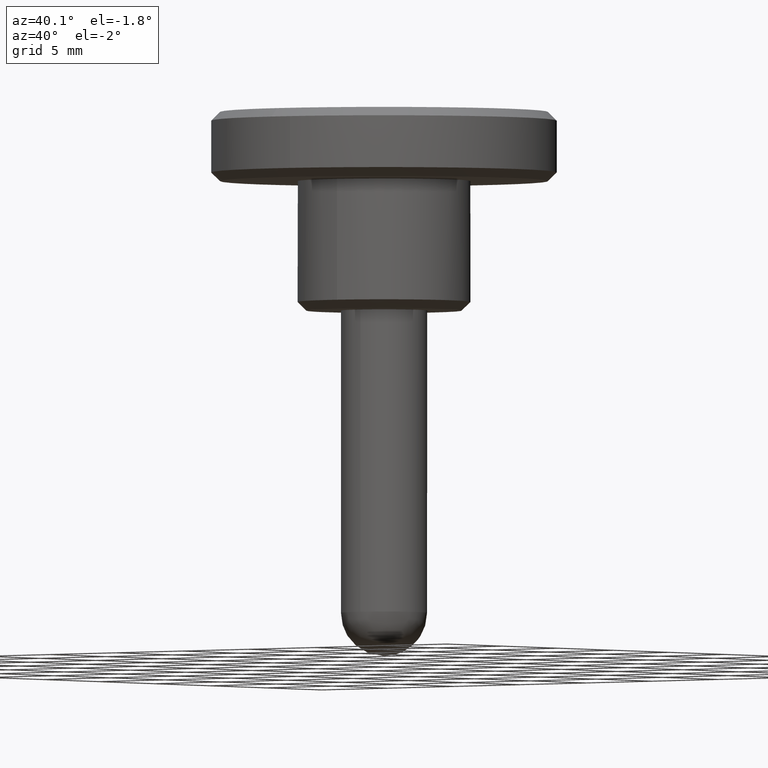
[diagram: clean part render]
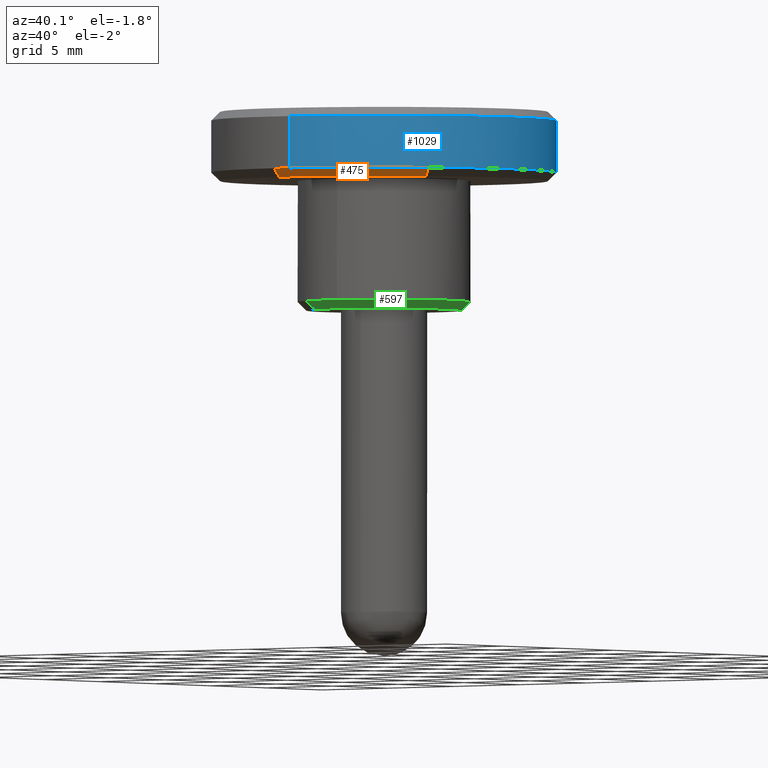
[diagram: same view with three faces highlighted in distinct colors, each labeled with its STEP entity id]
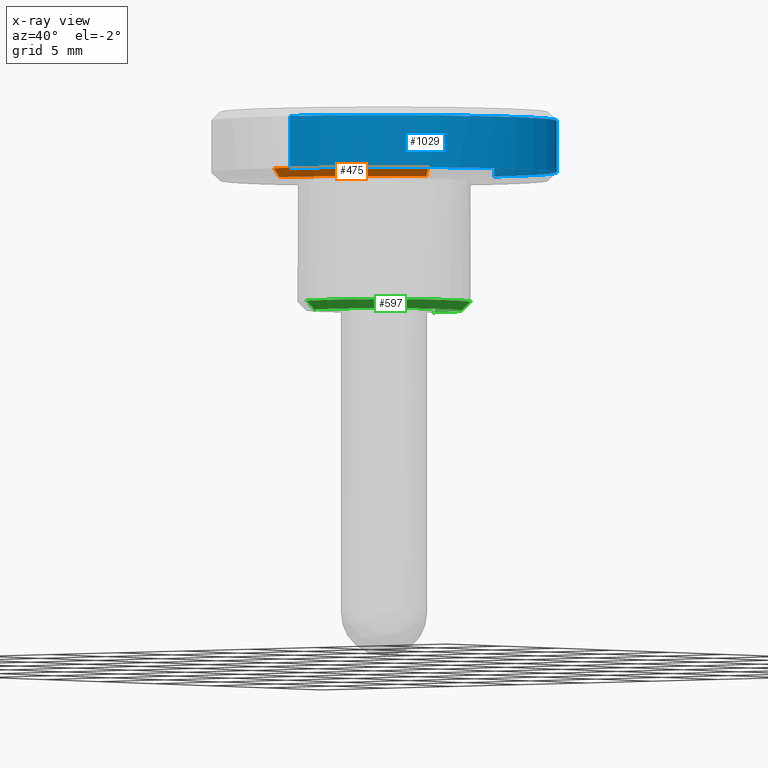
[diagram: x-ray of the same camera — body ghosted, the three highlighted faces saturated]
A machine part, auxiliary view with three faces highlighted in distinct colors.
The next image is the same camera in x-ray (body ghosted, the three faces saturated) — at least one of them is partly hidden behind the body in this view.
Their STEP definitions:

[orange] entity #475 — the highlighted face is a freeform B-spline surface patch.
#288=CARTESIAN_POINT('',(7.779228070748030,-5.452853438640519,7.500000000000470));
#289=VERTEX_POINT('',#288);
#320=CARTESIAN_POINT('',(0.082902087267421,-9.499638269113834,7.500000000004551));
#321=VERTEX_POINT('',#320);
#337=CARTESIAN_POINT('',(0.087265354983865,-9.999619230641743,8.000000000000121));
#338=VERTEX_POINT('',#337);
#339=CARTESIAN_POINT('',(0.082902087267421,-9.499638269113834,7.500000000004551));
#340=CARTESIAN_POINT('',(0.087265354983865,-9.999619230641743,8.000000000000121));
#341=QUASI_UNIFORM_CURVE('',1,(#339,#340),.UNSPECIFIED.,.F.,.U.);
#342=EDGE_CURVE('',#321,#338,#341,.T.);
#393=CARTESIAN_POINT('',(8.188661127107462,-5.739845724878052,8.000000000000174));
#394=VERTEX_POINT('',#393);
#408=CARTESIAN_POINT('',(7.779228070748030,-5.452853438640519,7.500000000000470));
#409=CARTESIAN_POINT('',(8.188661127107462,-5.739845724878052,8.000000000000174));
#410=QUASI_UNIFORM_CURVE('',1,(#408,#409),.UNSPECIFIED.,.F.,.U.);
#411=EDGE_CURVE('',#289,#394,#410,.T.);
#416=CARTESIAN_POINT('',(0.082793005540823,-9.487138745071432,7.487500000000109));
#417=CARTESIAN_POINT('',(4.966000022812007,-9.444523643036803,7.487500000000109));
#418=CARTESIAN_POINT('',(7.768992244344123,-5.445678631476790,7.487500000000110));
#419=CARTESIAN_POINT('',(0.087377163719812,-10.012431242781030,8.012812500000122));
#420=CARTESIAN_POINT('',(5.240962013534871,-9.967456589148242,8.012812500000123));
#421=CARTESIAN_POINT('',(8.199152849177494,-5.747199902211691,8.012812500000123));
#429=(BOUNDED_SURFACE()B_SPLINE_SURFACE(2,1,((#416,#419),(#417,#420),(#418,#421)),.UNSPECIFIED.,.F.,.F.,.U.)B_SPLINE_SURFACE_WITH_KNOTS((3,3),(2,2),(0.0,9.886015678606007),(0.0,1.0),.UNSPECIFIED.)GEOMETRIC_REPRESENTATION_ITEM()RATIONAL_B_SPLINE_SURFACE(((1.0,1.0),(0.824264068711928,0.824264068711928),(0.859411254969543,0.859411254969543)))REPRESENTATION_ITEM('')SURFACE());
#430=CARTESIAN_POINT('',(7.779228070748030,-5.452853438640519,7.500000000000470));
#431=CARTESIAN_POINT('',(4.972542842353667,-9.456967020661594,7.500000000000111));
#432=CARTESIAN_POINT('',(0.082902087267421,-9.499638269113834,7.500000000004551));
#440=(BOUNDED_CURVE()B_SPLINE_CURVE(2,(#430,#431,#432),.UNSPECIFIED.,.F.,.U.)B_SPLINE_CURVE_WITH_KNOTS((3,3),(0.098673726203164,0.248460105663795),.UNSPECIFIED.)CURVE()GEOMETRIC_REPRESENTATION_ITEM()RATIONAL_B_SPLINE_CURVE((0.860049271925728,0.823090203821257,0.996414028097588))REPRESENTATION_ITEM(''));
#441=EDGE_CURVE('',#289,#321,#440,.T.);
#442=ORIENTED_EDGE('',*,*,#441,.F.);
#443=ORIENTED_EDGE('',*,*,#411,.T.);
#444=CARTESIAN_POINT('',(1.241273210275925,-9.922662990216093,8.000000000000119));
#445=VERTEX_POINT('',#444);
#446=CARTESIAN_POINT('',(1.241273210275926,-9.922662990216093,8.000000000000119));
#447=CARTESIAN_POINT('',(5.642649146595481,-9.372073894983299,8.000000000000119));
#448=CARTESIAN_POINT('',(8.188661127107462,-5.739845724878052,8.000000000000174));
#456=(BOUNDED_CURVE()B_SPLINE_CURVE(2,(#446,#447,#448),.UNSPECIFIED.,.F.,.U.)B_SPLINE_CURVE_WITH_KNOTS((3,3),(0.271473813218811,0.401326273797078),.UNSPECIFIED.)CURVE()GEOMETRIC_REPRESENTATION_ITEM()RATIONAL_B_SPLINE_CURVE((0.954005654904512,0.828008802349301,0.860049271925847))REPRESENTATION_ITEM(''));
#457=EDGE_CURVE('',#445,#394,#456,.T.);
#458=ORIENTED_EDGE('',*,*,#457,.F.);
#459=CARTESIAN_POINT('',(0.087265354983865,-9.999619230641743,8.000000000000121));
#460=CARTESIAN_POINT('',(0.666498146396255,-9.994564342650969,8.000000000000119));
#461=CARTESIAN_POINT('',(1.241273210275926,-9.922662990216093,8.000000000000119));
#469=(BOUNDED_CURVE()B_SPLINE_CURVE(2,(#459,#460,#461),.UNSPECIFIED.,.F.,.U.)B_SPLINE_CURVE_WITH_KNOTS((3,3),(0.251539894334992,0.271473813218811),.UNSPECIFIED.)CURVE()GEOMETRIC_REPRESENTATION_ITEM()RATIONAL_B_SPLINE_CURVE((0.996414028100395,0.973347691453278,0.954005654904512))REPRESENTATION_ITEM(''));
#470=EDGE_CURVE('',#338,#445,#469,.T.);
#471=ORIENTED_EDGE('',*,*,#470,.F.);
#472=ORIENTED_EDGE('',*,*,#342,.F.);
#473=EDGE_LOOP('',(#442,#443,#458,#471,#472));
#474=FACE_OUTER_BOUND('',#473,.T.);
#475=ADVANCED_FACE('',(#474),#429,.T.);

[blue] entity #1029 — the highlighted face is a freeform B-spline surface patch.
#150=CARTESIAN_POINT('',(1.241271964109417,-9.922663146103972,11.000000000000171));
#151=VERTEX_POINT('',#150);
#167=CARTESIAN_POINT('',(10.0,0.0,11.000000000000121));
#168=VERTEX_POINT('',#167);
#169=CARTESIAN_POINT('',(10.0,0.0,11.000000000000121));
#170=CARTESIAN_POINT('',(10.0,-8.826993224421114,11.000000000000119));
#171=CARTESIAN_POINT('',(1.241271964109417,-9.922663146103972,11.000000000000178));
#179=(BOUNDED_CURVE()B_SPLINE_CURVE(2,(#169,#170,#171),.UNSPECIFIED.,.F.,.U.)B_SPLINE_CURVE_WITH_KNOTS((3,3),(0.500000000000000,0.728526207961082),.UNSPECIFIED.)CURVE()GEOMETRIC_REPRESENTATION_ITEM()RATIONAL_B_SPLINE_CURVE((1.0,0.732264893468185,0.954005696006546))REPRESENTATION_ITEM(''));
#180=EDGE_CURVE('',#168,#151,#179,.T.);
#182=CARTESIAN_POINT('',(-0.087255723740062,9.999619314683024,11.000000000000080));
#183=VERTEX_POINT('',#182);
#184=CARTESIAN_POINT('',(-0.087255723740062,9.999619314683024,11.000000000000075));
#185=CARTESIAN_POINT('',(-0.043628692310169,9.999999999999998,11.000000000000115));
#186=CARTESIAN_POINT('',(0.0,10.0,11.000000000000121));
#187=CARTESIAN_POINT('',(10.000000000000002,10.000000000000002,11.000000000000119));
#188=CARTESIAN_POINT('',(10.0,0.0,11.000000000000121));
#196=(BOUNDED_CURVE()B_SPLINE_CURVE(2,(#184,#185,#186,#187,#188),.UNSPECIFIED.,.F.,.U.)B_SPLINE_CURVE_WITH_KNOTS((3,2,3),(0.248460275318907,0.250000000000000,0.500000000000000),.UNSPECIFIED.)CURVE()GEOMETRIC_REPRESENTATION_ITEM()RATIONAL_B_SPLINE_CURVE((0.996414420727321,0.998196100328273,1.0,0.707106781186548,1.0))REPRESENTATION_ITEM(''));
#197=EDGE_CURVE('',#183,#168,#196,.T.);
#361=CARTESIAN_POINT('',(-0.087255683769048,9.999619315031769,8.000000000000119));
#362=VERTEX_POINT('',#361);
#376=CARTESIAN_POINT('',(10.0,0.0,8.000000000000119));
#377=VERTEX_POINT('',#376);
#378=CARTESIAN_POINT('',(10.0,0.0,8.000000000000119));
#379=CARTESIAN_POINT('',(10.000000000000002,10.000000000000002,8.000000000000119));
#380=CARTESIAN_POINT('',(0.0,10.0,8.000000000000119));
#381=CARTESIAN_POINT('',(-0.043628672323520,10.000000000000002,8.000000000000119));
#382=CARTESIAN_POINT('',(-0.087255683769048,9.999619315031769,8.000000000000119));
#390=(BOUNDED_CURVE()B_SPLINE_CURVE(2,(#378,#379,#380,#381,#382),.UNSPECIFIED.,.F.,.U.)B_SPLINE_CURVE_WITH_KNOTS((3,2,3),(0.500000000000000,0.750000000000000,0.751539723977005),.UNSPECIFIED.)CURVE()GEOMETRIC_REPRESENTATION_ITEM()RATIONAL_B_SPLINE_CURVE((1.0,0.707106781186548,1.0,0.998196101153163,0.996414422356779))REPRESENTATION_ITEM(''));
#391=EDGE_CURVE('',#377,#362,#390,.T.);
#393=CARTESIAN_POINT('',(8.188661127107462,-5.739845724878052,8.000000000000174));
#394=VERTEX_POINT('',#393);
#395=CARTESIAN_POINT('',(8.188661127107462,-5.739845724878052,8.000000000000174));
#396=CARTESIAN_POINT('',(10.0,-3.155727452816907,8.000000000000119));
#397=CARTESIAN_POINT('',(10.0,0.0,8.000000000000119));
#405=(BOUNDED_CURVE()B_SPLINE_CURVE(2,(#395,#396,#397),.UNSPECIFIED.,.F.,.U.)B_SPLINE_CURVE_WITH_KNOTS((3,3),(0.401326273797078,0.500000000000000),.UNSPECIFIED.)CURVE()GEOMETRIC_REPRESENTATION_ITEM()RATIONAL_B_SPLINE_CURVE((0.860049271925847,0.884396538880435,1.0))REPRESENTATION_ITEM(''));
#406=EDGE_CURVE('',#394,#377,#405,.T.);
#444=CARTESIAN_POINT('',(1.241273210275925,-9.922662990216093,8.000000000000119));
#445=VERTEX_POINT('',#444);
#446=CARTESIAN_POINT('',(1.241273210275926,-9.922662990216093,8.000000000000119));
#447=CARTESIAN_POINT('',(5.642649146595481,-9.372073894983299,8.000000000000119));
#448=CARTESIAN_POINT('',(8.188661127107462,-5.739845724878052,8.000000000000174));
#456=(BOUNDED_CURVE()B_SPLINE_CURVE(2,(#446,#447,#448),.UNSPECIFIED.,.F.,.U.)B_SPLINE_CURVE_WITH_KNOTS((3,3),(0.271473813218811,0.401326273797078),.UNSPECIFIED.)CURVE()GEOMETRIC_REPRESENTATION_ITEM()RATIONAL_B_SPLINE_CURVE((0.954005654904512,0.828008802349301,0.860049271925847))REPRESENTATION_ITEM(''));
#457=EDGE_CURVE('',#445,#394,#456,.T.);
#994=CARTESIAN_POINT('',(1.241280020798293,-9.922662138255385,7.925000000000121));
#995=CARTESIAN_POINT('',(10.077328305024446,-8.817312581332210,7.925000000000119));
#996=CARTESIAN_POINT('',(9.999619230641709,0.087265354983739,7.925000000000119));
#997=CARTESIAN_POINT('',(9.912353875657971,10.086884585625448,7.925000000000118));
#998=CARTESIAN_POINT('',(-0.087265354983739,9.999619230641709,7.925000000000119));
#999=CARTESIAN_POINT('',(1.241280020798293,-9.922662138255385,11.076875000000120));
#1000=CARTESIAN_POINT('',(10.077328305024446,-8.817312581332210,11.076875000000122));
#1001=CARTESIAN_POINT('',(9.999619230641709,0.087265354983739,11.076875000000120));
#1002=CARTESIAN_POINT('',(9.912353875657971,10.086884585625448,11.076875000000122));
#1003=CARTESIAN_POINT('',(-0.087265354983739,9.999619230641709,11.076875000000120));
#1011=(BOUNDED_SURFACE()B_SPLINE_SURFACE(2,1,((#994,#999),(#995,#1000),(#996,#1001),(#997,#1002),(#998,#1003)),.UNSPECIFIED.,.F.,.F.,.U.)B_SPLINE_SURFACE_WITH_KNOTS((3,2,3),(2,2),(0.0,15.243059095329890,31.811601590253691),(0.0,3.151875000000003),.UNSPECIFIED.)GEOMETRIC_REPRESENTATION_ITEM()RATIONAL_B_SPLINE_SURFACE(((0.956886118190660,0.956886118190660),(0.730538238691624,0.730538238691624),(1.0,1.0),(0.707106781186548,0.707106781186548),(1.0,1.0)))REPRESENTATION_ITEM('')SURFACE());
#1012=ORIENTED_EDGE('',*,*,#180,.T.);
#1013=CARTESIAN_POINT('',(1.241273210275925,-9.922662990216093,8.000000000000119));
#1014=CARTESIAN_POINT('',(1.241271964109417,-9.922663146103972,11.000000000000171));
#1015=QUASI_UNIFORM_CURVE('',1,(#1013,#1014),.UNSPECIFIED.,.F.,.U.);
#1016=EDGE_CURVE('',#445,#151,#1015,.T.);
#1017=ORIENTED_EDGE('',*,*,#1016,.F.);
#1018=ORIENTED_EDGE('',*,*,#457,.T.);
#1019=ORIENTED_EDGE('',*,*,#406,.T.);
#1020=ORIENTED_EDGE('',*,*,#391,.T.);
#1021=CARTESIAN_POINT('',(-0.087255683769048,9.999619315031769,8.000000000000119));
#1022=CARTESIAN_POINT('',(-0.087255723740062,9.999619314683024,11.000000000000080));
#1023=QUASI_UNIFORM_CURVE('',1,(#1021,#1022),.UNSPECIFIED.,.F.,.U.);
#1024=EDGE_CURVE('',#362,#183,#1023,.T.);
#1025=ORIENTED_EDGE('',*,*,#1024,.T.);
#1026=ORIENTED_EDGE('',*,*,#197,.T.);
#1027=EDGE_LOOP('',(#1012,#1017,#1018,#1019,#1020,#1025,#1026));
#1028=FACE_OUTER_BOUND('',#1027,.T.);
#1029=ADVANCED_FACE('',(#1028),#1011,.T.);

[green] entity #597 — the highlighted face is a freeform B-spline surface patch.
#476=CARTESIAN_POINT('',(-1.813916751045586,-4.104553845459481,-0.012499999999999));
#477=CARTESIAN_POINT('',(-0.928656247279884,-4.495775137049067,-0.012499999999999));
#478=CARTESIAN_POINT('',(0.039160328048953,-4.487329129750467,-0.012499999999999));
#479=CARTESIAN_POINT('',(4.526489457799420,-4.448168801701514,-0.012499999999999));
#480=CARTESIAN_POINT('',(4.487329129750467,0.039160328048953,-0.012499999999999));
#481=CARTESIAN_POINT('',(4.448168801701514,4.526489457799420,-0.012499999999999));
#482=CARTESIAN_POINT('',(-0.039160328048953,4.487329129750467,-0.012499999999999));
#483=CARTESIAN_POINT('',(-2.026256170161715,-4.585038177925872,0.512812499999944));
#484=CARTESIAN_POINT('',(-1.037365937508121,-5.022056335195270,0.512812499999944));
#485=CARTESIAN_POINT('',(0.043744486227942,-5.012621627460113,0.512812499999944));
#486=CARTESIAN_POINT('',(5.056366113688056,-4.968877141232172,0.512812499999944));
#487=CARTESIAN_POINT('',(5.012621627460113,0.043744486227942,0.512812499999944));
#488=CARTESIAN_POINT('',(4.968877141232172,5.056366113688056,0.512812499999944));
#489=CARTESIAN_POINT('',(-0.043744486227942,5.012621627460113,0.512812499999944));
#497=(BOUNDED_SURFACE()B_SPLINE_SURFACE(2,1,((#476,#483),(#477,#484),(#478,#485),(#479,#486),(#480,#487),(#481,#488),(#482,#489)),.UNSPECIFIED.,.F.,.F.,.U.)B_SPLINE_SURFACE_WITH_KNOTS((3,2,2,3),(2,2),(0.0,2.325539913909386,10.631039606442901,18.936539298976420),(0.0,1.0),.UNSPECIFIED.)GEOMETRIC_REPRESENTATION_ITEM()RATIONAL_B_SPLINE_SURFACE(((0.881905454174416,0.881905454174416),(0.917989898732233,0.917989898732233),(1.0,1.0),(0.707106781186548,0.707106781186548),(1.0,1.0),(0.707106781186548,0.707106781186548),(1.0,1.0)))REPRESENTATION_ITEM('')SURFACE());
#498=CARTESIAN_POINT('',(-2.021077159954792,-4.573319047860394,0.500000000001310));
#499=VERTEX_POINT('',#498);
#500=CARTESIAN_POINT('',(0.620630775701108,-4.961332224329068,0.499999999999932));
#501=VERTEX_POINT('',#500);
#502=CARTESIAN_POINT('',(-2.021077159954792,-4.573319047860394,0.500000000001310));
#503=CARTESIAN_POINT('',(-1.055578086276392,-5.0,0.499999999999945));
#504=CARTESIAN_POINT('',(0.0,-5.0,0.499999999999945));
#505=CARTESIAN_POINT('',(0.311519966268091,-5.000000000000001,0.499999999999945));
#506=CARTESIAN_POINT('',(0.620630775701108,-4.961332224329068,0.499999999999932));
#514=(BOUNDED_CURVE()B_SPLINE_CURVE(2,(#502,#503,#504,#505,#506),.UNSPECIFIED.,.F.,.U.)B_SPLINE_CURVE_WITH_KNOTS((3,2,3),(0.181361578458918,0.250000000000000,0.271473615064145),.UNSPECIFIED.)CURVE()GEOMETRIC_REPRESENTATION_ITEM()RATIONAL_B_SPLINE_CURVE((0.883326595750813,0.919585087122232,1.0,0.974842095057206,0.954006039446907))REPRESENTATION_ITEM(''));
#515=EDGE_CURVE('',#499,#501,#514,.T.);
#516=ORIENTED_EDGE('',*,*,#515,.F.);
#517=CARTESIAN_POINT('',(-1.818969443961259,-4.115987143073681,1.398501E-012));
#518=VERTEX_POINT('',#517);
#519=CARTESIAN_POINT('',(-1.818969443961259,-4.115987143073681,1.398501E-012));
#520=CARTESIAN_POINT('',(-2.021077159954792,-4.573319047860394,0.500000000001310));
#521=QUASI_UNIFORM_CURVE('',1,(#519,#520),.UNSPECIFIED.,.F.,.U.);
#522=EDGE_CURVE('',#518,#499,#521,.T.);
#523=ORIENTED_EDGE('',*,*,#522,.F.);
#524=CARTESIAN_POINT('',(4.500000000000000,0.0,0.0));
#525=VERTEX_POINT('',#524);
#526=CARTESIAN_POINT('',(4.500000000000000,0.0,0.0));
#527=CARTESIAN_POINT('',(4.500000000000000,-4.500000000000000,0.0));
#528=CARTESIAN_POINT('',(0.0,-4.500000000000000,0.0));
#529=CARTESIAN_POINT('',(-0.950020277650895,-4.500000000000000,0.0));
#530=CARTESIAN_POINT('',(-1.818969443961259,-4.115987143073681,1.398501E-012));
#538=(BOUNDED_CURVE()B_SPLINE_CURVE(2,(#526,#527,#528,#529,#530),.UNSPECIFIED.,.F.,.U.)B_SPLINE_CURVE_WITH_KNOTS((3,2,3),(0.500000000000000,0.750000000000000,0.818638421541224),.UNSPECIFIED.)CURVE()GEOMETRIC_REPRESENTATION_ITEM()RATIONAL_B_SPLINE_CURVE((1.0,0.707106781186547,1.0,0.919585087122065,0.883326595750662))REPRESENTATION_ITEM(''));
#539=EDGE_CURVE('',#525,#518,#538,.T.);
#540=ORIENTED_EDGE('',*,*,#539,.F.);
#541=CARTESIAN_POINT('',(-0.039269409746564,4.499828653789267,5.310570E-013));
#542=VERTEX_POINT('',#541);
#543=CARTESIAN_POINT('',(-0.039269409746564,4.499828653789267,5.310570E-013));
#544=CARTESIAN_POINT('',(-0.019635078697034,4.500000000000002,0.0));
#545=CARTESIAN_POINT('',(0.0,4.500000000000000,0.0));
#546=CARTESIAN_POINT('',(4.500000000000000,4.500000000000000,0.0));
#547=CARTESIAN_POINT('',(4.500000000000000,0.0,0.0));
#555=(BOUNDED_CURVE()B_SPLINE_CURVE(2,(#543,#544,#545,#546,#547),.UNSPECIFIED.,.F.,.U.)B_SPLINE_CURVE_WITH_KNOTS((3,2,3),(0.248460105664709,0.250000000000000,0.500000000000000),.UNSPECIFIED.)CURVE()GEOMETRIC_REPRESENTATION_ITEM()RATIONAL_B_SPLINE_CURVE((0.996414028099703,0.998195901566016,1.0,0.707106781186547,1.0))REPRESENTATION_ITEM(''));
#556=EDGE_CURVE('',#542,#525,#555,.T.);
#557=ORIENTED_EDGE('',*,*,#556,.F.);
#558=CARTESIAN_POINT('',(-0.043632139682655,4.999809620014071,0.499999999999888));
#559=VERTEX_POINT('',#558);
#560=CARTESIAN_POINT('',(-0.039269409746564,4.499828653789267,5.310570E-013));
#561=CARTESIAN_POINT('',(-0.043632139682655,4.999809620014071,0.499999999999888));
#562=QUASI_UNIFORM_CURVE('',1,(#560,#561),.UNSPECIFIED.,.F.,.U.);
#563=EDGE_CURVE('',#542,#559,#562,.T.);
#564=ORIENTED_EDGE('',*,*,#563,.T.);
#565=CARTESIAN_POINT('',(5.0,0.0,0.499999999999945));
#566=VERTEX_POINT('',#565);
#567=CARTESIAN_POINT('',(5.0,0.0,0.499999999999945));
#568=CARTESIAN_POINT('',(5.000000000000001,5.000000000000001,0.499999999999945));
#569=CARTESIAN_POINT('',(0.0,5.0,0.499999999999945));
#570=CARTESIAN_POINT('',(-0.021816485183542,5.0,0.499999999999945));
#571=CARTESIAN_POINT('',(-0.043632139682655,4.999809620014071,0.499999999999888));
#579=(BOUNDED_CURVE()B_SPLINE_CURVE(2,(#567,#568,#569,#570,#571),.UNSPECIFIED.,.F.,.U.)B_SPLINE_CURVE_WITH_KNOTS((3,2,3),(0.500000000000000,0.750000000000000,0.751539875388023),.UNSPECIFIED.)CURVE()GEOMETRIC_REPRESENTATION_ITEM()RATIONAL_B_SPLINE_CURVE((1.0,0.707106781186548,1.0,0.998195923764121,0.996414071948992))REPRESENTATION_ITEM(''));
#580=EDGE_CURVE('',#566,#559,#579,.T.);
#581=ORIENTED_EDGE('',*,*,#580,.F.);
#582=CARTESIAN_POINT('',(0.620630775701108,-4.961332224329068,0.499999999999932));
#583=CARTESIAN_POINT('',(4.999999999999999,-4.413501279772150,0.499999999999945));
#584=CARTESIAN_POINT('',(5.0,0.0,0.499999999999945));
#592=(BOUNDED_CURVE()B_SPLINE_CURVE(2,(#582,#583,#584),.UNSPECIFIED.,.F.,.U.)B_SPLINE_CURVE_WITH_KNOTS((3,3),(0.271473615064145,0.500000000000000),.UNSPECIFIED.)CURVE()GEOMETRIC_REPRESENTATION_ITEM()RATIONAL_B_SPLINE_CURVE((0.954006039446907,0.732264686129342,1.0))REPRESENTATION_ITEM(''));
#593=EDGE_CURVE('',#501,#566,#592,.T.);
#594=ORIENTED_EDGE('',*,*,#593,.F.);
#595=EDGE_LOOP('',(#516,#523,#540,#557,#564,#581,#594));
#596=FACE_OUTER_BOUND('',#595,.T.);
#597=ADVANCED_FACE('',(#596),#497,.T.);